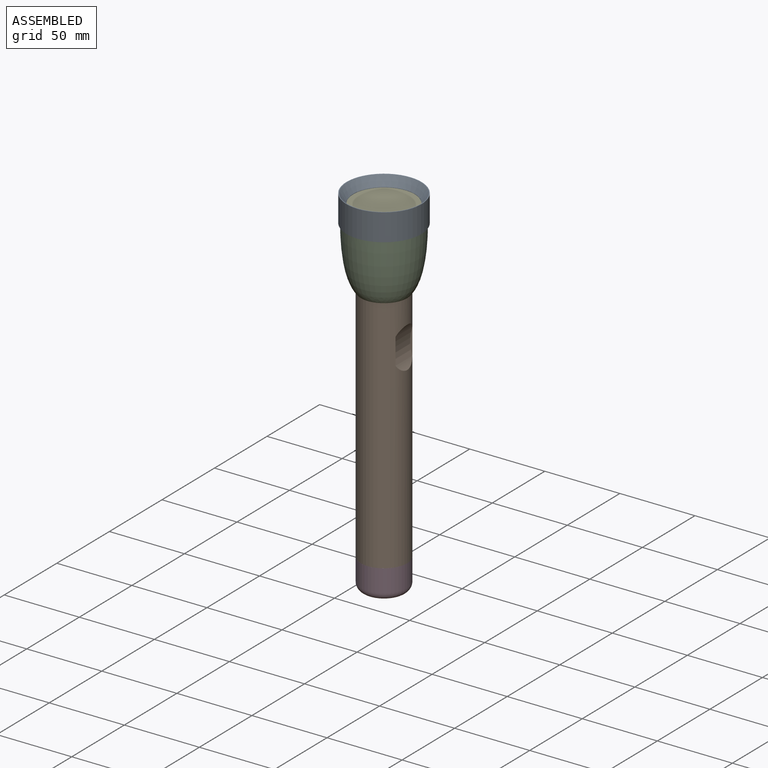
[diagram: assembled view]
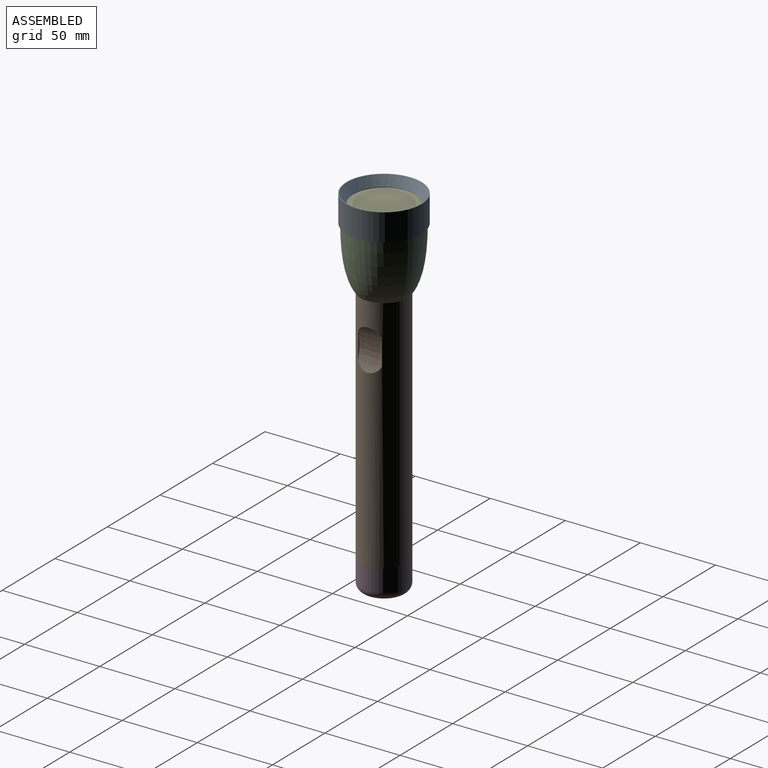
[diagram: assembled view, second angle]
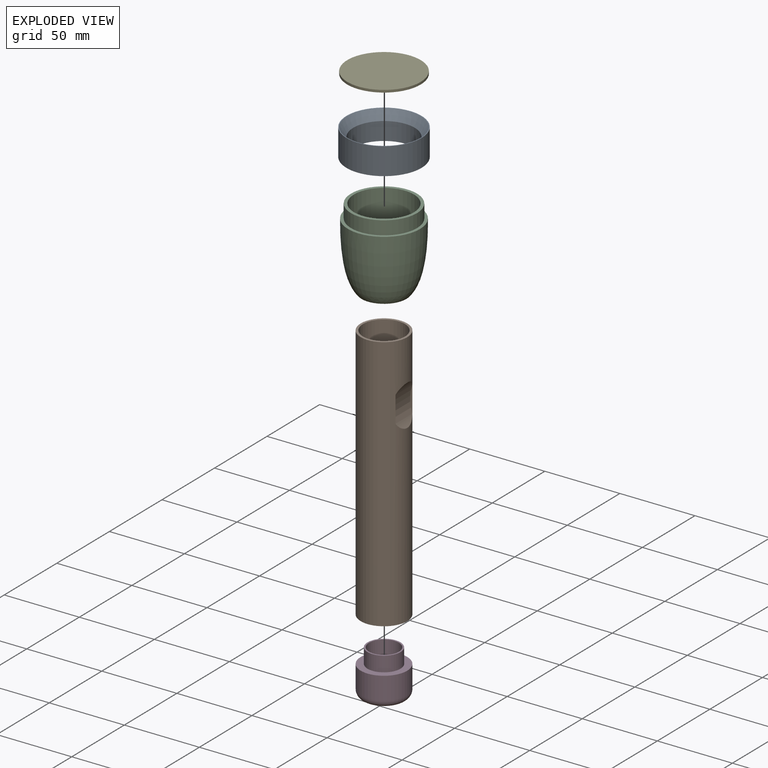
[diagram: exploded view]
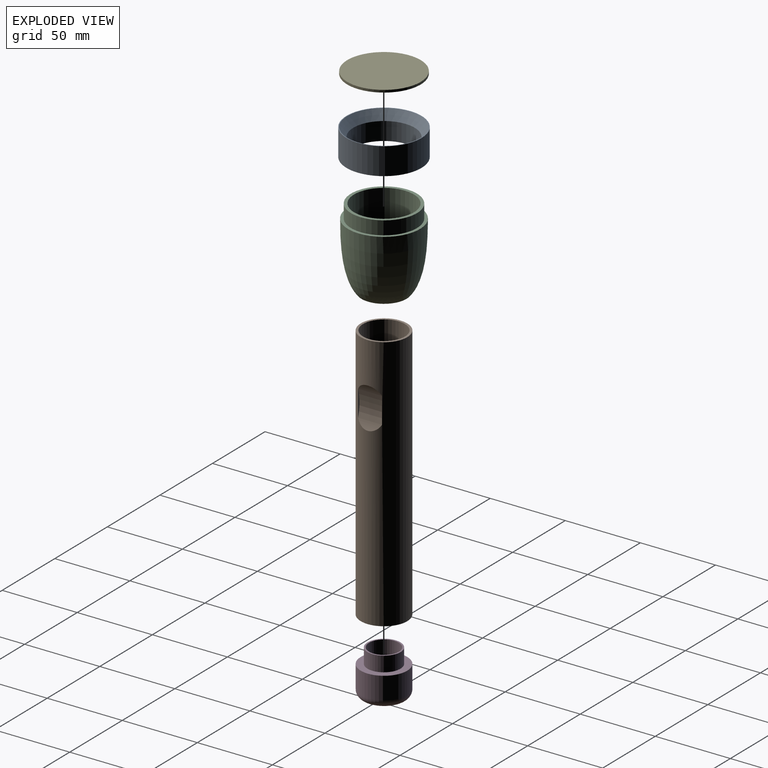
[diagram: exploded view, second angle]
ASSEMBLY  parts=5 mates=4
PART A: 5 faces, bbox 50x50x18 mm
  f0: cylinder r=25mm len=50mm, axis (0,0,-1), area 2827.4mm2, adj f1,f2
  f1: plane 50x50mm, normal (0,0,1), area 77.8mm2, adj f0,f4
  f2: plane 50x50mm, normal (0,0,-1), area 643.2mm2, adj f0,f3
  f3: cylinder r=20.5mm len=41mm, axis (0,0,1), area 1545.7mm2, adj f2,f4
  f4: cone r=20.5mm half-angle=33.7deg, axis (0,0,1), area 1019.4mm2, adj f1,f3
PART B: 12 faces, bbox 31x31x171 mm
  f0: cylinder r=15.5mm len=171mm, axis (0,0,-1), area 16245.2mm2, adj f1,f2,f9,f10,f11
  f1: plane 31x31mm, normal (0,0,1), area 139mm2, adj f0,f7
  f2: plane 31x31mm, normal (0,0,-1), area 182.2mm2, adj f0,f3
  f3: cylinder r=13.5mm len=27mm, axis (0,0,-1), area 339.3mm2, adj f2,f4
  f4: plane 27x27mm, normal (0,0,-1), area 112.6mm2, adj f3,f5
  f5: cylinder r=12.1mm len=113mm, axis (0,0,-1), area 8591mm2, adj f4,f6
  f6: plane 24.2x24.2mm, normal (0,0,-1), area 460mm2, adj f5
  f7: cylinder r=14mm len=28mm, axis (0,0,1), area 2375mm2, adj f1,f8
  f8: plane 28x28mm, normal (0,0,1), area 615.8mm2, adj f7
  f9: cylinder r=27.27mm len=27.27mm, axis (0,1,0), area 405.7mm2, adj f0,f10,f11
  f10: plane 17.42x1.43mm, normal (0,1,0), area 16.7mm2, adj f0,f9
  f11: plane 17.42x1.43mm, normal (0,-1,0), area 16.7mm2, adj f0,f9
PART C: 11 faces, bbox 48x48x53.5 mm
  f0: plane 44x44mm, normal (0,0,1), area 263.9mm2, adj f1,f10
  f1: cylinder r=20mm len=40mm, axis (0,0,1), area 2513.3mm2, adj f0,f2
  f2: plane 40x40mm, normal (0,0,1), area 549.8mm2, adj f1,f3
  f3: cylinder r=15mm len=30mm, axis (0,0,1), area 141.4mm2, adj f2,f4
  f4: plane 30x30mm, normal (0,0,1), area 134.3mm2, adj f3,f5
  f5: cylinder r=13.5mm len=27mm, axis (0,0,1), area 1696.5mm2, adj f4,f6
  f6: plane 30x30mm, normal (0,0,-1), area 134.3mm2, adj f5,f7
  f7: cylinder r=15mm len=30mm, axis (0,0,1), area 1131mm2, adj f6,f8
  f8: revolved ~48x48mm, area 6313.9mm2, adj f7,f9
  f9: plane 48x48mm, normal (0,0,1), area 289mm2, adj f8,f10
  f10: cylinder r=22mm len=44mm, axis (0,0,1), area 1244.1mm2, adj f0,f9
PART D: 8 faces, bbox 33.6x33.6x30 mm
  f0: plane 22x22mm, normal (0,0,1), area 66mm2, adj f1,f4
  f1: cylinder r=10mm len=21mm, axis (0,0,1), area 1319.5mm2, adj f0,f2
  f2: plane 20x20mm, normal (0,0,1), area 314.2mm2, adj f1
  f3: plane 31x31mm, normal (0,0,1), area 374.6mm2, adj f4,f6
  f4: cylinder r=11mm len=22mm, axis (0,0,1), area 691.2mm2, adj f0,f3
  f5: plane 21x21mm, normal (0,0,-1), area 346.4mm2, adj f7
  f6: cylinder r=15.5mm len=31mm, axis (0,0,-1), area 1460.8mm2, adj f3,f7
  f7: torus R=10.5mm, axis (0,0,1), area 675.2mm2, adj f5,f6
PART E: 3 faces, bbox 49x49x1.6 mm
  f0: cylinder r=24.5mm len=49mm, axis (0,0,-1), area 246.3mm2, adj f1,f2
  f1: plane 49x49mm, normal (0,0,1), area 1885.7mm2, adj f0
  f2: plane 49x49mm, normal (0,0,-1), area 1885.7mm2, adj f0
PLACE A rot(axis=(0,0,-1),1.2deg) t=(-0.05,4.31,209.49)mm
PLACE B rot(axis=(0,0,1),0deg) t=(-0.05,4.31,8.77)mm
PLACE C rot(axis=(0,0,1),0deg) t=(-0.05,4.31,160.54)mm
PLACE D t=(-0.05,4.31,-11.23)mm fixed
PLACE E rot(axis=(0,0,1),0deg) t=(-0.05,4.31,219.67)mm
MATE cylindrical E.f0 <-> C.f1  axis (0,0,1) through (-0.05,4.31,221.27)mm
MATE cylindrical B.f0 <-> D.f6  axis (0,0,-1) through (-0.05,4.31,8.77)mm
MATE cylindrical A.f3 <-> C.f1  axis (0,0,1) through (-0.05,4.31,227.49)mm
MATE cylindrical C.f1 <-> B.f0  axis (0,0,-1) through (-0.05,4.31,179.77)mm
